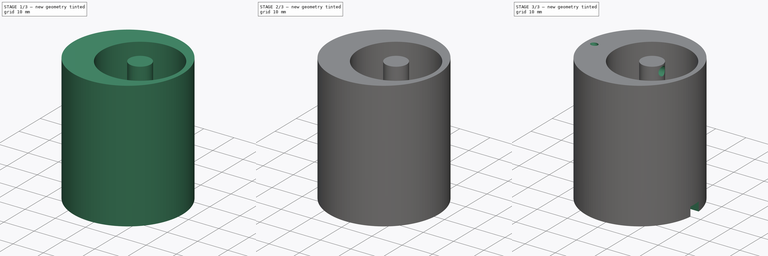
[diagram: build sequence overview — one tinted view per stage of 3, left to right]
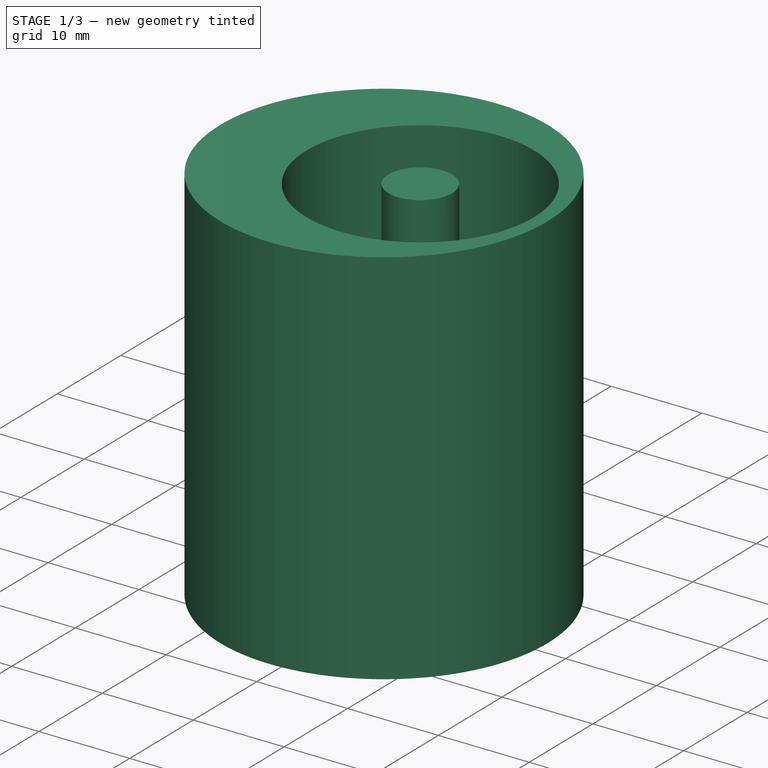
[diagram: stage 1 of 3 — iso view after this stage's code; geometry added in this stage tinted green]
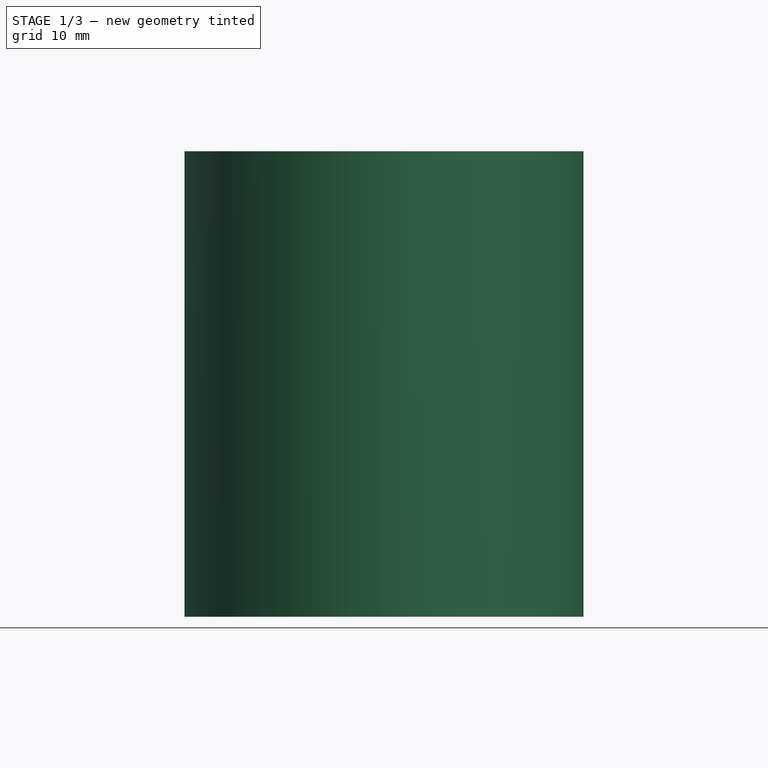
[diagram: stage 1 of 3 — front view after this stage's code; geometry added in this stage tinted green]
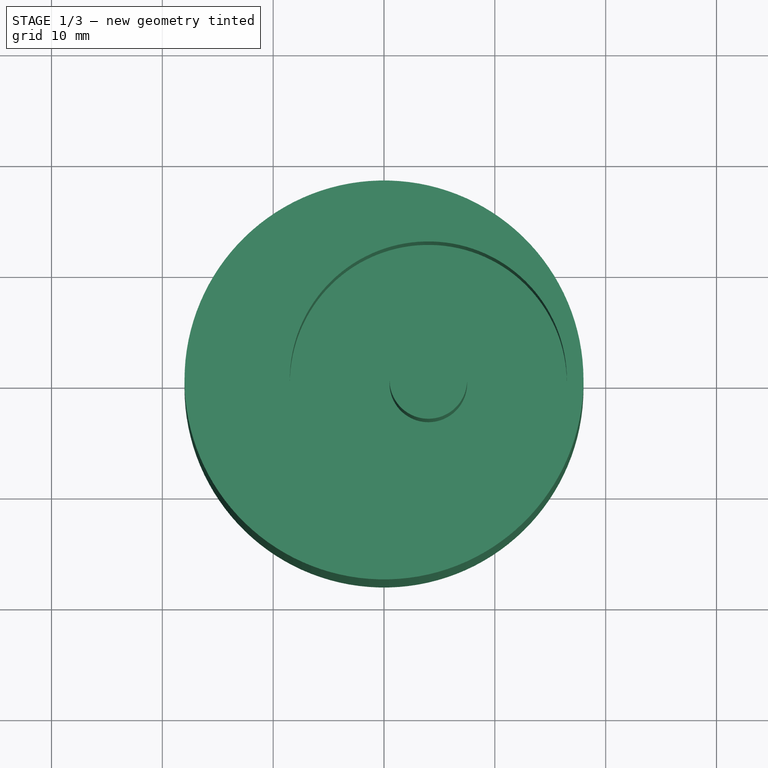
[diagram: stage 1 of 3 — top view after this stage's code; geometry added in this stage tinted green]
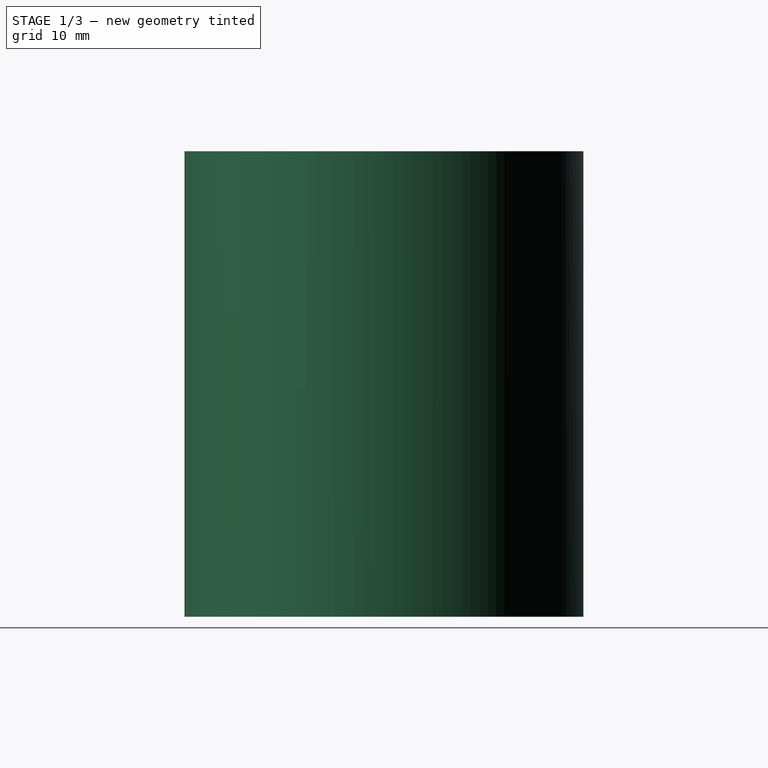
[diagram: stage 1 of 3 — right view after this stage's code; geometry added in this stage tinted green]
FCSTD DOCUMENT  (FreeCAD 0.20R29603 (Git))
Label: Freio
License: All rights reserved
LicenseURL: http://en.wikipedia.org/wiki/All_rights_reserved
objects: Sketcher::SketchObject×5, PartDesign::Pocket×5, PartDesign::Plane×3, PartDesign::SubtractiveCylinder×2, PartDesign::AdditiveCylinder×1, PartDesign::Body×1
note: 25 computed .brp shape members not serialized (recipe doc carries the construction recipe); baked Part::Feature solids carry a one-line shape summary decoded from their .brp

FEATURE [PartDesign::AdditiveCylinder] Cylinder  label="CorpoPrincipal"
  Angle = 360
  AttacherType = Attacher::AttachEngine3D
  FirstAngle = 0
  Height = 42
  MapMode = 5
  Radius = 18
  SecondAngle = 0
  Support = -> [XY_Plane]
FEATURE [Sketcher::SketchObject] Sketch
  FullyConstrained = true
  MapMode = 5
  Placement = pos=(0,0,0) rot=(1,0,0;3.14159rad)
  Support = -> [Cylinder]
  sketch-geometry (1):
    g0: Circle CenterX=-7 CenterY=0 CenterZ=0 NormalX=0 NormalY=0 NormalZ=1 AngleXU=0 Radius=10.2
  constraints (3):
    c: Radius(g0) = 10.2
    c: PointOnObject(g0,g-1)
    c: DistanceX(g0,g-1) = 7
FEATURE [PartDesign::Pocket] Pocket  label="EletroIma"
  BaseFeature = -> Cylinder
  Direction = (0,0,1)
  Length = 16
  Length2 = 5
  Profile = -> Sketch
  ReferenceAxis = -> Sketch [N_Axis]
  Type = 0
FEATURE [PartDesign::Plane] DatumPlane
  Length = 60
  MapMode = 5
  Placement = pos=(0,0,16) rot=(1,0,0;3.14159rad)
  ResizeMode = 0
  Support = -> [Pocket]
  Width = 60
FEATURE [Sketcher::SketchObject] Sketch001
  FullyConstrained = true
  MapMode = 5
  Placement = pos=(0,0,16) rot=(1,0,0;3.14159rad)
  Support = -> [DatumPlane]
  sketch-geometry (2):
    g0: Circle CenterX=-7 CenterY=0 CenterZ=0 NormalX=0 NormalY=0 NormalZ=1 AngleXU=0 Radius=4
    g1: GeomPoint X=0 Y=0 Z=0
  constraints (4):
    c: Diameter(g0) = 8
    c: PointOnObject(g0,g-1)
    c: Coincident(g1,g-1)
    c: Distance(g1,g0) = 7
FEATURE [PartDesign::Plane] DatumPlane001
  Length = 60
  MapMode = 5
  Placement = pos=(0,0,42) rot=(0,0,1;0rad)
  ResizeMode = 0
  Support = -> [Pocket]
  Width = 60
FEATURE [Sketcher::SketchObject] Sketch002
  FullyConstrained = true
  MapMode = 5
  Placement = pos=(0,0,42) rot=(0,0,1;0rad)
  Support = -> [DatumPlane001]
  sketch-geometry (2):
    g0: Circle CenterX=4 CenterY=0 CenterZ=0 NormalX=0 NormalY=0 NormalZ=1 AngleXU=0 Radius=12.5
    g1: Circle CenterX=4 CenterY=0 CenterZ=0 NormalX=0 NormalY=0 NormalZ=1 AngleXU=0 Radius=3.5
  constraints (5):
    c: Diameter(g0) = 25
    c: Horizontal(g0,g-1)
    c: Distance(g-1,g0) = 4
    c: Coincident(g1,g0)
    c: Diameter(g1) = 7
FEATURE [PartDesign::Pocket] Pocket001  label="Carretel"
  BaseFeature = -> Pocket
  Direction = (0,0,-1)
  Length = 18
  Length2 = 5
  Profile = -> Sketch002
  ReferenceAxis = -> Sketch002 [N_Axis]
  Type = 0
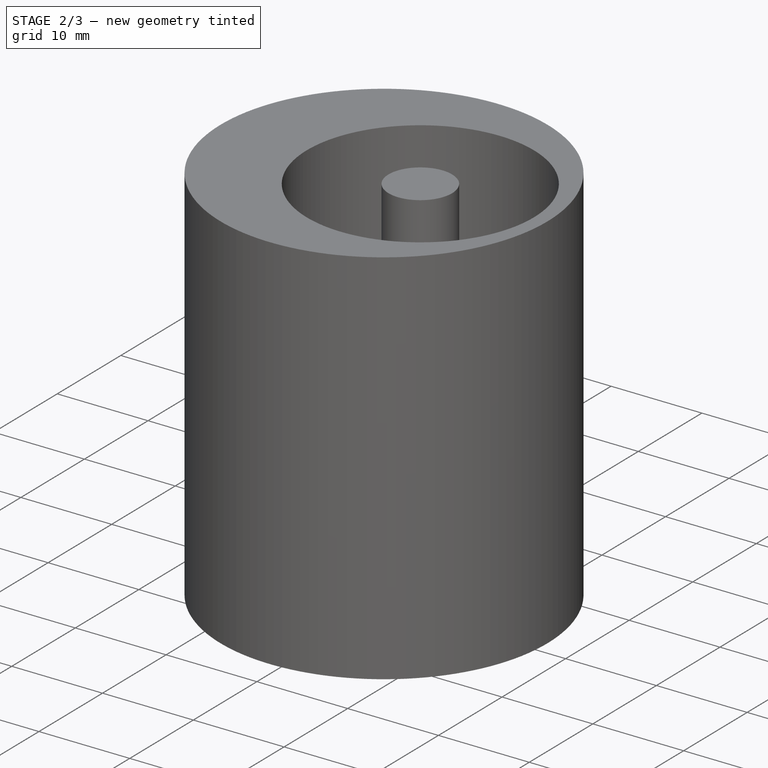
[diagram: stage 2 of 3 — iso view after this stage's code; geometry added in this stage tinted green]
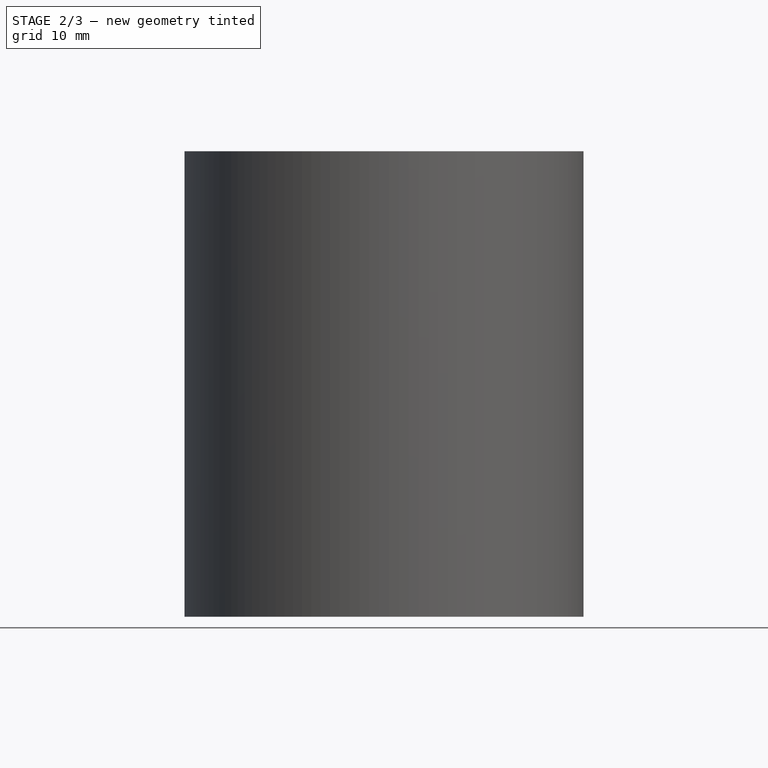
[diagram: stage 2 of 3 — front view after this stage's code; geometry added in this stage tinted green]
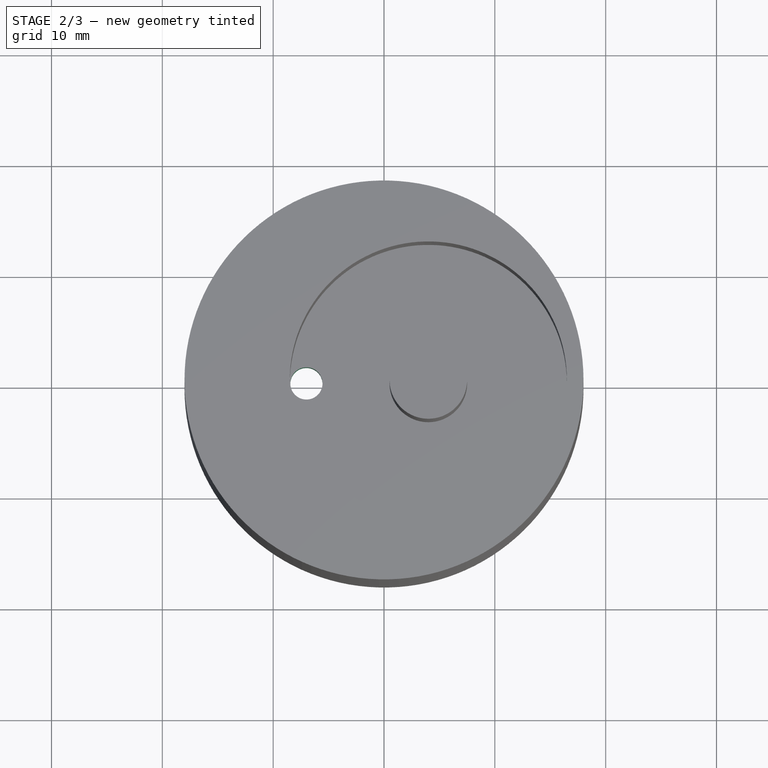
[diagram: stage 2 of 3 — top view after this stage's code; geometry added in this stage tinted green]
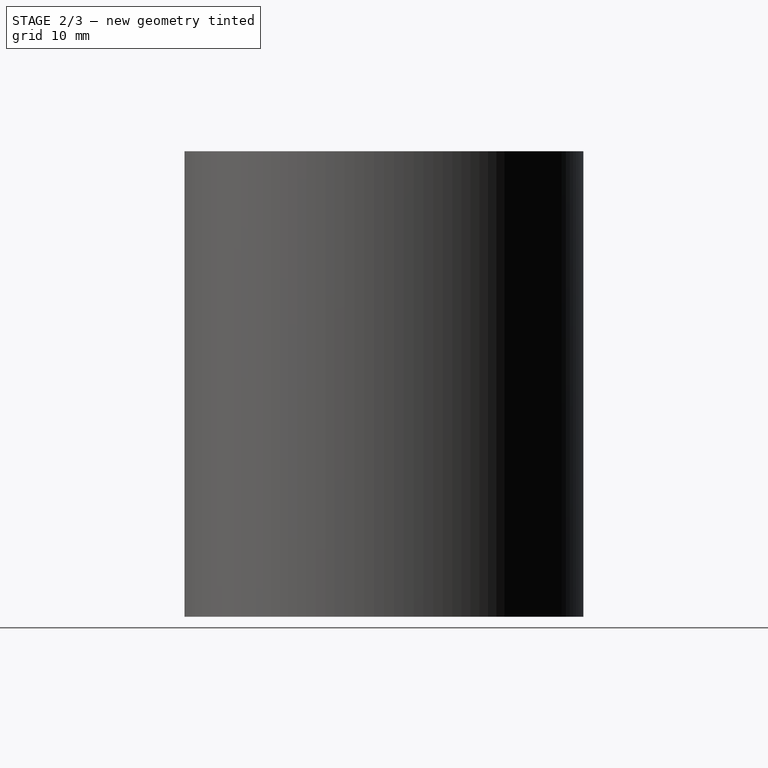
[diagram: stage 2 of 3 — right view after this stage's code; geometry added in this stage tinted green]
FEATURE [PartDesign::Pocket] Pocket002  label="CursoIma"
  BaseFeature = -> Pocket001
  Direction = (0,0,1)
  Length = 4
  Length2 = 5
  Profile = -> Sketch001
  ReferenceAxis = -> Sketch001 [N_Axis]
  Type = 0
FEATURE [PartDesign::Plane] DatumPlane002
  Length = 60
  MapMode = 5
  Placement = pos=(0,0,20) rot=(1,0,0;3.14159rad)
  ResizeMode = 0
  Support = -> [Pocket002]
  Width = 60
FEATURE [Sketcher::SketchObject] Sketch003
  FullyConstrained = false
  MapMode = 5
  Placement = pos=(0,0,20) rot=(1,0,0;3.14159rad)
  Support = -> [DatumPlane002]
  sketch-geometry (2):
    g0: GeomPoint X=-7 Y=0 Z=0
    g1: Circle CenterX=-7 CenterY=0 CenterZ=0 NormalX=0 NormalY=0 NormalZ=1 AngleXU=0 Radius=1.45341
  constraints (3):
    c: PointOnObject(g0,g-1)
    c: Distance(g0,g-1) = 7
    c: Coincident(g1,g0)
FEATURE [PartDesign::Pocket] Pocket003  label="CursoTrava"
  BaseFeature = -> Pocket002
  Direction = (0,0,1)
  Length = 5
  Length2 = 5
  Profile = -> Sketch003
  ReferenceAxis = -> Sketch003 [N_Axis]
  Type = 0
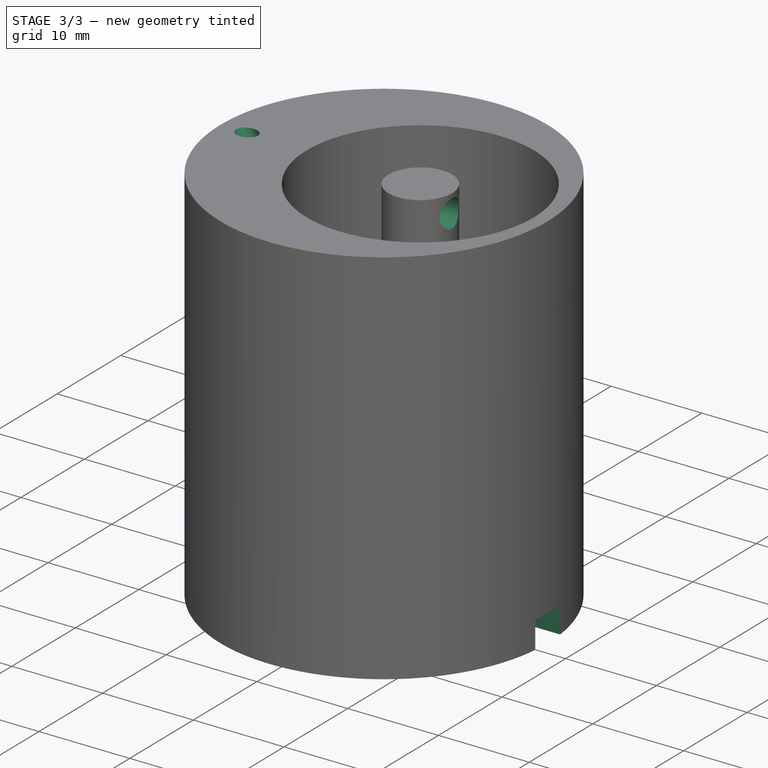
[diagram: stage 3 of 3 — iso view after this stage's code; geometry added in this stage tinted green]
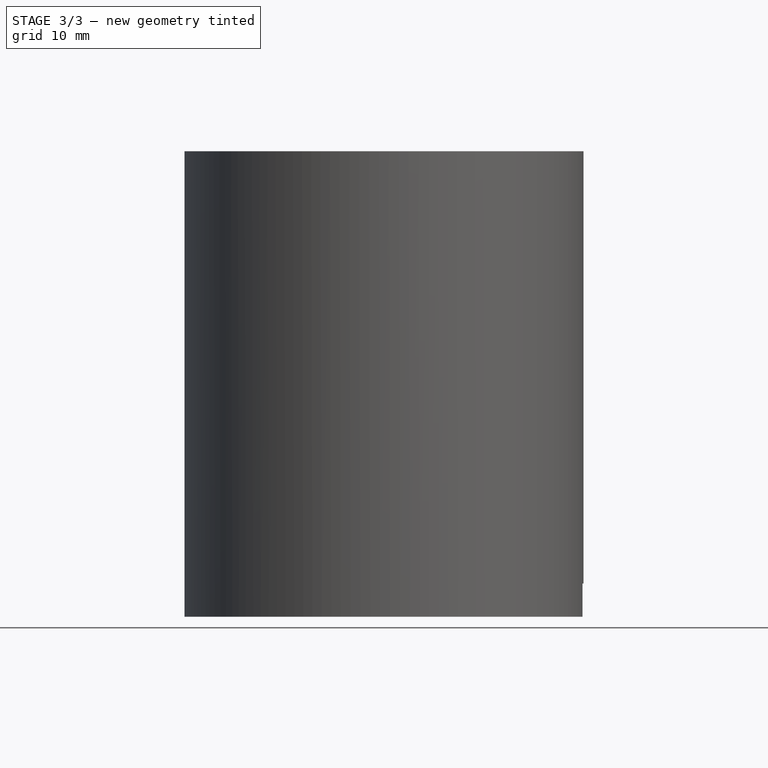
[diagram: stage 3 of 3 — front view after this stage's code; geometry added in this stage tinted green]
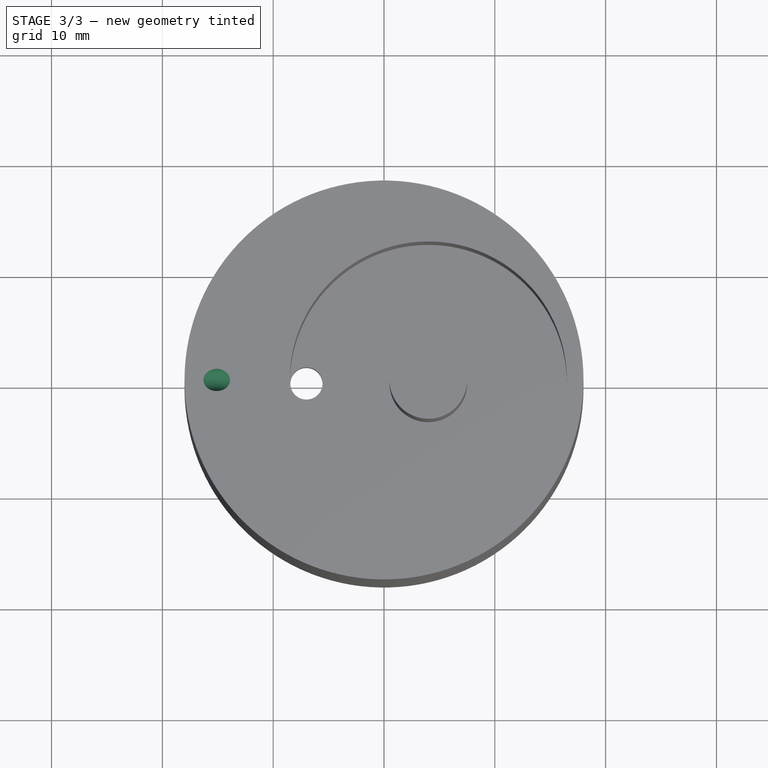
[diagram: stage 3 of 3 — top view after this stage's code; geometry added in this stage tinted green]
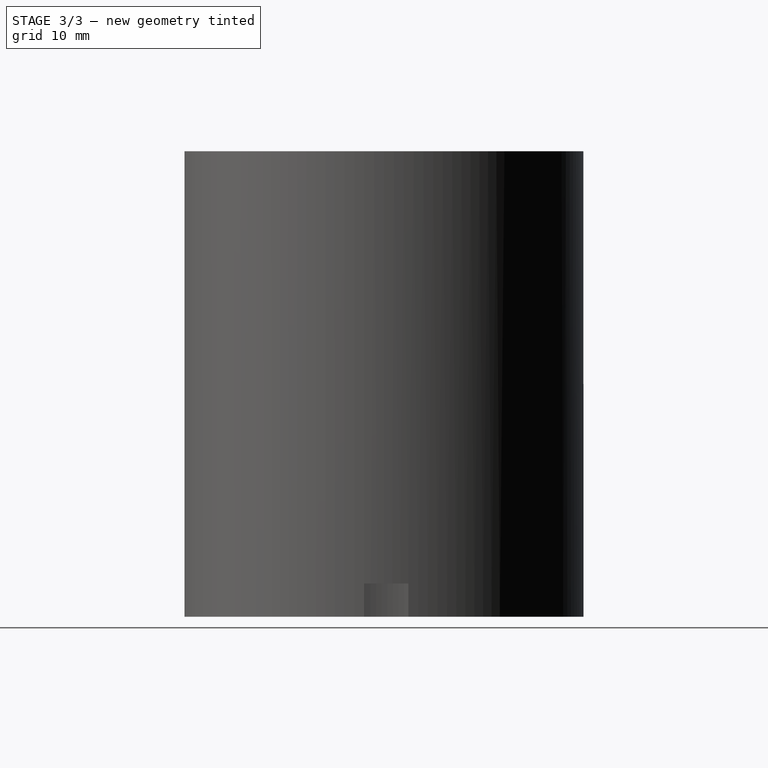
[diagram: stage 3 of 3 — right view after this stage's code; geometry added in this stage tinted green]
FEATURE [PartDesign::SubtractiveCylinder] Cylinder001  label="Conduite"
  Angle = 360
  AttacherType = Attacher::AttachEngine3D
  AttachmentOffset = pos=(-7,0,-12) rot=(0,-1,0;0.593412rad)
  BaseFeature = -> Pocket003
  FirstAngle = 0
  Height = 33
  MapMode = 5
  Placement = pos=(-7,0,30) rot=(0,-1,0;0.593412rad)
  Radius = 1
  Refine = true
  SecondAngle = 0
  Support = -> [Pocket003]
FEATURE [PartDesign::SubtractiveCylinder] Cylinder002  label="EncaixeElastico"
  Angle = 360
  AttacherType = Attacher::AttachEngine3D
  AttachmentOffset = pos=(0,40,0) rot=(0,0,1;0rad)
  BaseFeature = -> Cylinder001
  FirstAngle = 0
  Height = 10
  MapMode = 5
  Placement = pos=(-8.9e-15,8.9e-15,40) rot=(0.57735,0.57735,0.57735;2.0944rad)
  Radius = 1.5
  Refine = true
  SecondAngle = 0
  Support = -> [YZ_Plane]
FEATURE [Sketcher::SketchObject] Sketch004
  FullyConstrained = false
  MapMode = 5
  Placement = pos=(8.1e-15,1.6e-14,-7.1e-15) rot=(0.707107,0.707107,0;3.14159rad)
  Support = -> [Cylinder002]
  sketch-geometry (6):
    g0: GeomPoint X=0.203517 Y=6.99704 Z=0
    g1: LineSegment StartX=-1.79003 StartY=18.8935 StartZ=0 EndX=-1.79003 EndY=-4.89937 EndZ=0
    g2: LineSegment StartX=-1.79003 StartY=-4.89937 StartZ=0 EndX=2.19707 EndY=-4.89937 EndZ=0
    g3: LineSegment StartX=2.19707 StartY=-4.89937 StartZ=0 EndX=2.19707 EndY=18.8935 EndZ=0
    g4: LineSegment StartX=2.19707 StartY=18.8935 StartZ=0 EndX=-1.79003 EndY=18.8935 EndZ=0
    g5: GeomPoint X=0.203517 Y=6.99704 Z=0
  constraints (11):
    c: Distance(g-1,g0) = 7
    c: Coincident(g1,g2)
    c: Coincident(g2,g3)
    c: Coincident(g3,g4)
    c: Coincident(g4,g1)
    c: Horizontal(g2)
    c: Horizontal(g4)
    c: Vertical(g1)
    c: Vertical(g3)
    c: Symmetric(g2,g1,g5)
    c: Coincident(g5,g0)
FEATURE [PartDesign::Pocket] Pocket004  label="FioEletroIma"
  BaseFeature = -> Cylinder002
  Direction = (-4e-16,-2e-16,1)
  Length = 3
  Length2 = 5
  Placement = pos=(-8.9e-15,8.9e-15,40) rot=(0.57735,0.57735,0.57735;2.0944rad)
  Profile = -> Sketch004
  ReferenceAxis = -> Sketch004 [N_Axis]
  Refine = true
  Type = 0
FEATURE [PartDesign::Body] Body
  Group = -> [Cylinder,Sketch,Pocket,DatumPlane,Sketch001,DatumPlane001,Sketch002,Pocket001,Pocket002,DatumPlane002,Sketch003,Pocket003,Cylinder001,Cylinder002,Sketch004,Pocket004]
  Origin = -> Origin
  Tip = -> Pocket004
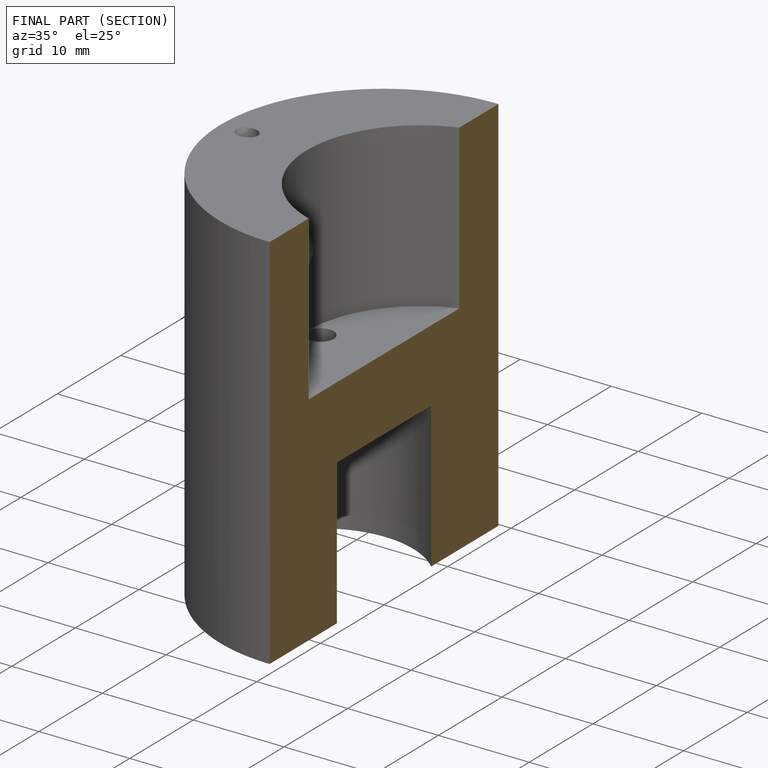
[diagram: finished part — half-section view (interior)]
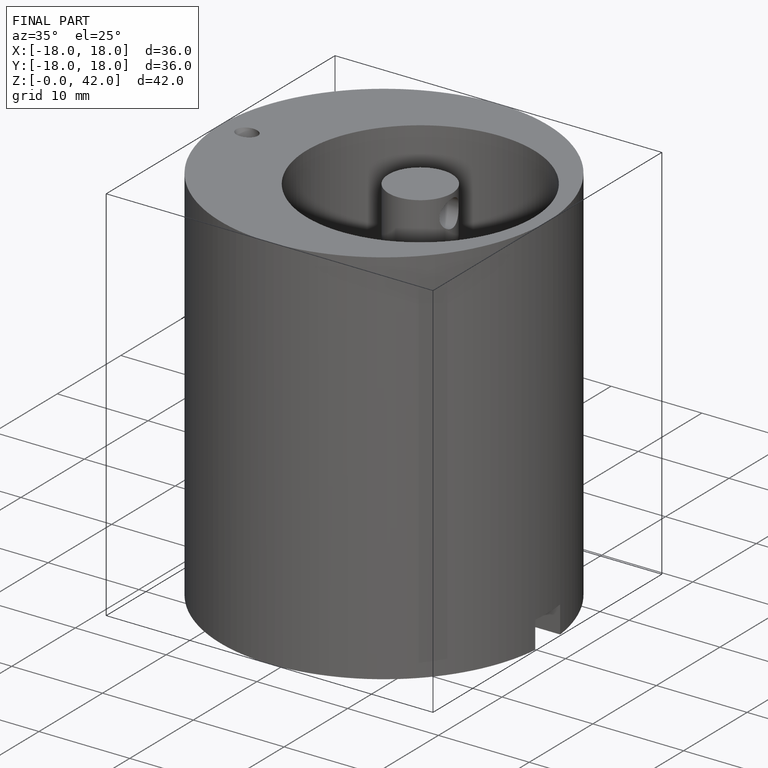
[diagram: finished part — iso view with bounding-box wireframe]
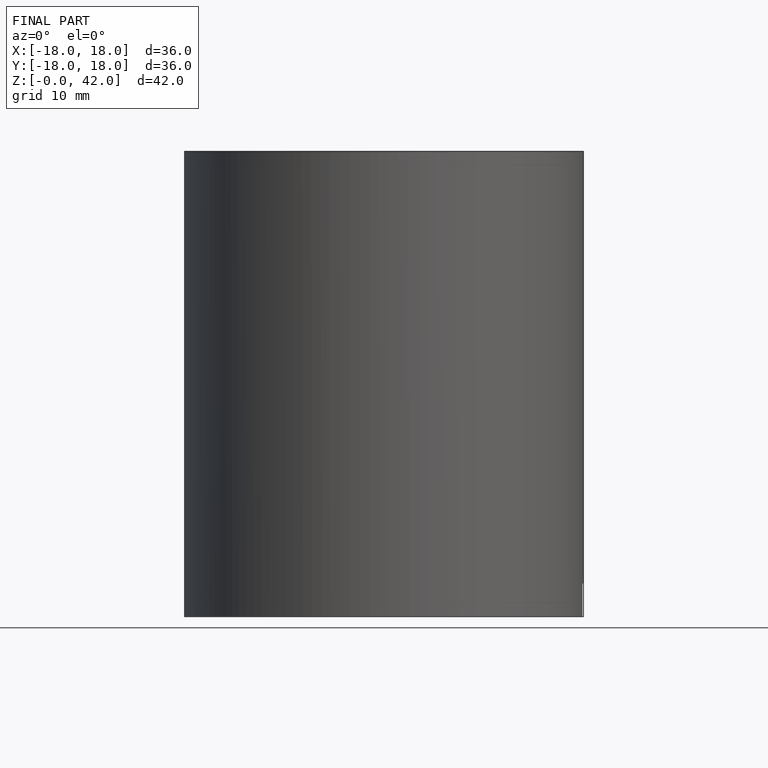
[diagram: finished part — front view with bounding-box wireframe]
